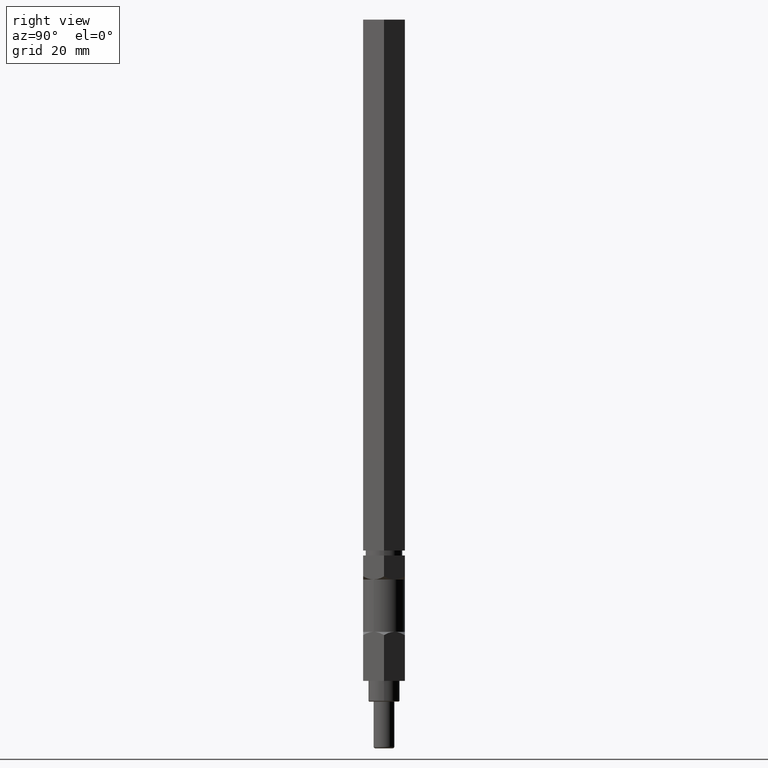
[diagram: clean part render]
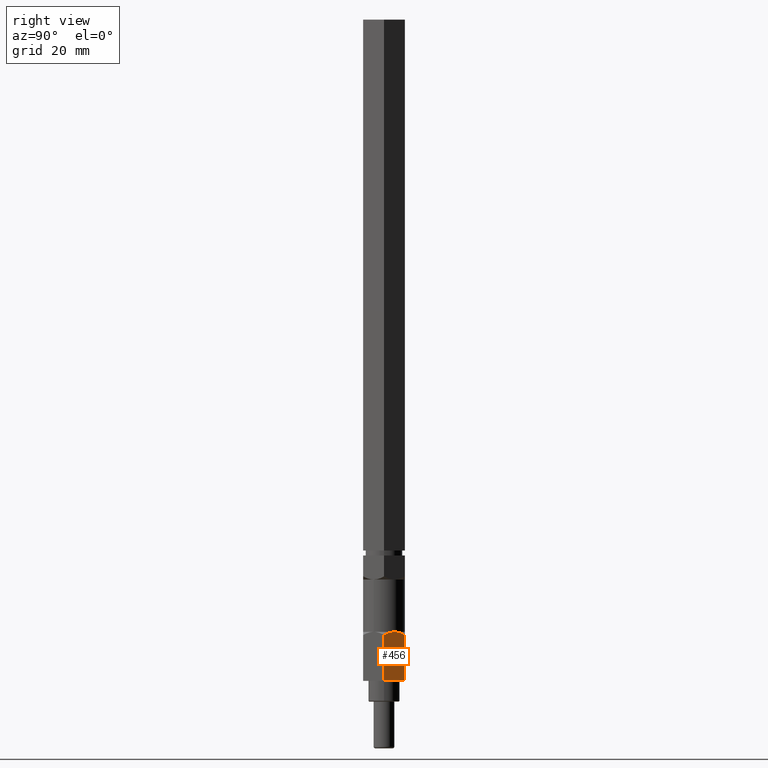
[diagram: same view with one face highlighted and labeled with its STEP entity id]
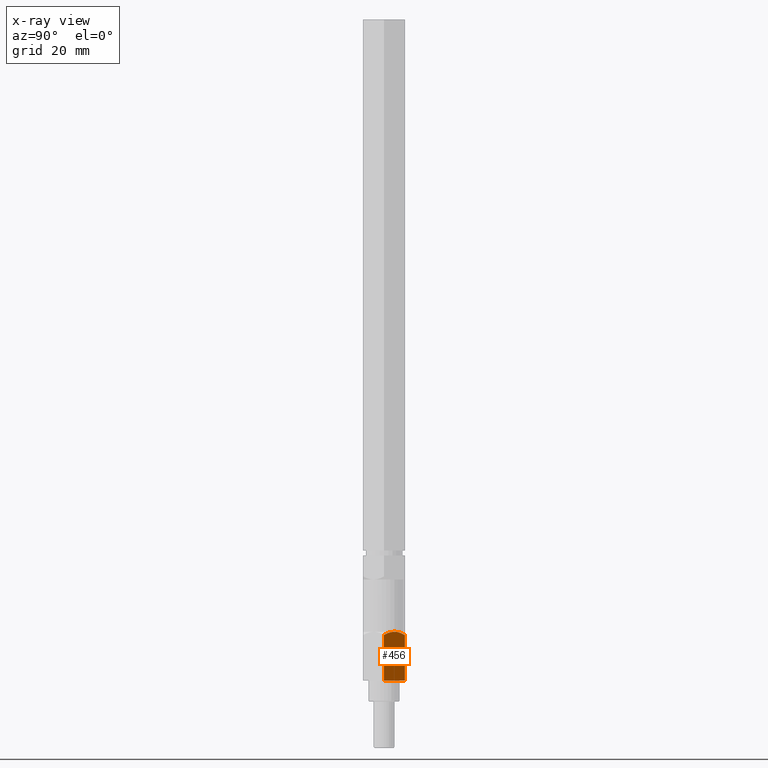
[diagram: x-ray of the same camera — body ghosted, the highlighted face saturated]
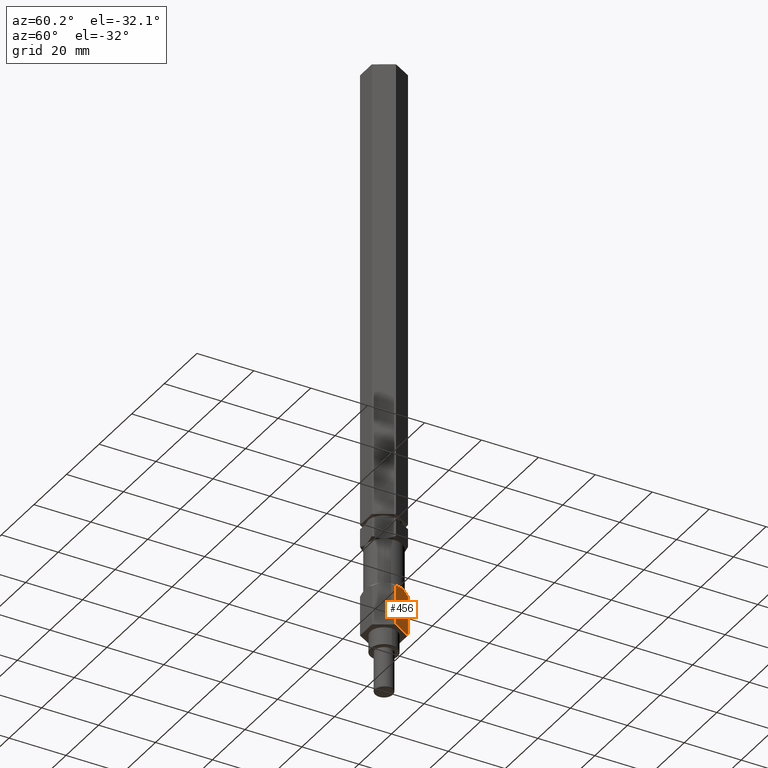
[diagram: same view with one face highlighted and labeled with its STEP entity id]
A machine part, right view. The second image highlights one B-rep face of the part: STEP entity #456.
The next image is the same camera in x-ray: the body ghosted, the highlighted face saturated — about 0% of this face is hidden behind the body in this view.
A second angle (auxiliary view) of the same face is appended — the face is thin or edge-on in the first view.
In plain terms, the highlighted planar face has unit normal (-0.866, -0.5, 0).
Its self-contained STEP definition (entity closure, byte-faithful):
#35 = CARTESIAN_POINT ( 'NONE',  ( -41.50931968023328977, 35.25928631796896440, -55.21392004042454715 ) ) ;
#59 = CARTESIAN_POINT ( 'NONE',  ( -40.31697137170734635, 33.19407846728321232, -78.60903965617787037 ) ) ;
#95 = ORIENTED_EDGE ( 'NONE', *, *, #1338, .T. ) ;
#105 = CARTESIAN_POINT ( 'NONE',  ( -39.67623257555623439, 32.08428631796896724, -78.48857250042458134 ) ) ;
#162 = DIRECTION ( 'NONE',  ( 0.5000000000000002220, -0.8660254037844384856, 0.0000000000000000000 ) ) ;
#234 = CARTESIAN_POINT ( 'NONE',  ( -39.83840285783918489, 32.36517348636082403, -78.48857250042456712 ) ) ;
#311 = CARTESIAN_POINT ( 'NONE',  ( -37.84314547087916480, 28.90928631796897008, -79.47092004042455926 ) ) ;
#456 = ADVANCED_FACE ( 'NONE', ( #795 ), #1591, .F. ) ;
#489 = CARTESIAN_POINT ( 'NONE',  ( -41.50931968023328977, 35.25928631796896440, -79.47092004042455926 ) ) ;
#509 = CARTESIAN_POINT ( 'NONE',  ( -37.98655260835094083, 29.15767476623807397, -79.32751380013054643 ) ) ;
#584 = CARTESIAN_POINT ( 'NONE',  ( -39.67623257555623439, 32.08428631796896724, -78.48857250042458134 ) ) ;
#588 = DIRECTION ( 'NONE',  ( -0.8660254037844385966, -0.5000000000000003331, 0.0000000000000000000 ) ) ;
#589 = VERTEX_POINT ( 'NONE', #584 ) ;
#644 = CARTESIAN_POINT ( 'NONE',  ( -38.13214292680353168, 29.40984459488810998, -79.19445446182582771 ) ) ;
#711 = EDGE_CURVE ( 'NONE', #2125, #1845, #1741, .T. ) ;
#713 = CARTESIAN_POINT ( 'NONE',  ( -37.84314547087916480, 28.90928631796897008, -79.47092004042455926 ) ) ;
#723 = B_SPLINE_CURVE_WITH_KNOTS ( 'NONE', 3,
 ( #2142, #1391, #972, #743, #1557, #644, #509, #713 ),
 .UNSPECIFIED., .F., .F.,
 ( 4, 2, 2, 4 ),
 ( 0.0000000000000000000, 0.001902731302156769827, 0.002854096953235165691, 0.003805462604313561772 ),
 .UNSPECIFIED. ) ;
#740 = AXIS2_PLACEMENT_3D ( 'NONE', #1502, #588, #162 ) ;
#743 = CARTESIAN_POINT ( 'NONE',  ( -38.58101618019030354, 30.18731587591274490, -78.84931234472132644 ) ) ;
#795 = FACE_OUTER_BOUND ( 'NONE', #1961, .T. ) ;
#824 = CARTESIAN_POINT ( 'NONE',  ( -37.84314547087916480, 28.90928631796896298, -93.44092004042454391 ) ) ;
#873 = CARTESIAN_POINT ( 'NONE',  ( -41.22204757283114418, 34.76171491038368089, -79.18364749366824640 ) ) ;
#901 = EDGE_CURVE ( 'NONE', #923, #1614, #2078, .T. ) ;
#923 = VERTEX_POINT ( 'NONE', #489 ) ;
#967 = CARTESIAN_POINT ( 'NONE',  ( -37.84314547087916480, 28.90928631796896298, -93.44092004042454391 ) ) ;
#972 = CARTESIAN_POINT ( 'NONE',  ( -39.04109241039546419, 30.98419128198283090, -78.58762250070174105 ) ) ;
#1034 = ORIENTED_EDGE ( 'NONE', *, *, #901, .F. ) ;
#1078 = EDGE_CURVE ( 'NONE', #1845, #1614, #1920, .T. ) ;
#1086 = CARTESIAN_POINT ( 'NONE',  ( -41.50931968023328977, 35.25928631796896440, -93.44092004042454391 ) ) ;
#1107 = ORIENTED_EDGE ( 'NONE', *, *, #711, .T. ) ;
#1145 = CARTESIAN_POINT ( 'NONE',  ( -40.92827681740472912, 34.25289055817462724, -78.93951527207065055 ) ) ;
#1157 = VECTOR ( 'NONE', #1710, 1000.000000000000000 ) ;
#1297 = EDGE_CURVE ( 'NONE', #589, #2125, #723, .T. ) ;
#1338 = EDGE_CURVE ( 'NONE', #923, #589, #1498, .T. ) ;
#1371 = VECTOR ( 'NONE', #1539, 1000.000000000000000 ) ;
#1391 = CARTESIAN_POINT ( 'NONE',  ( -39.35436045387304205, 31.52678744967368729, -78.48857250042459555 ) ) ;
#1498 = B_SPLINE_CURVE_WITH_KNOTS ( 'NONE', 3,
 ( #2015, #873, #1145, #1612, #59, #1584, #234, #105 ),
 .UNSPECIFIED., .F., .F.,
 ( 4, 2, 2, 4 ),
 ( 0.0000000000000000000, 0.001898955494015795199, 0.002848433241023692799, 0.003797910988031590399 ),
 .UNSPECIFIED. ) ;
#1502 = CARTESIAN_POINT ( 'NONE',  ( -37.84314547087916480, 28.90928631796896298, -55.21392004042454715 ) ) ;
#1539 = DIRECTION ( 'NONE',  ( -0.0000000000000000000, -0.0000000000000000000, -1.000000000000000000 ) ) ;
#1557 = CARTESIAN_POINT ( 'NONE',  ( -38.42905460229282255, 29.92411070219593938, -78.95549486082011015 ) ) ;
#1560 = CARTESIAN_POINT ( 'NONE',  ( -37.84314547087916480, 28.90928631796896298, -55.21392004042454715 ) ) ;
#1584 = CARTESIAN_POINT ( 'NONE',  ( -40.00074672137523635, 32.64636130630231037, -78.51399390747333484 ) ) ;
#1591 = PLANE ( 'NONE',  #740 ) ;
#1612 = CARTESIAN_POINT ( 'NONE',  ( -40.47179682614542884, 33.46224402067493031, -78.67838562998093721 ) ) ;
#1614 = VERTEX_POINT ( 'NONE', #1086 ) ;
#1696 = DIRECTION ( 'NONE',  ( -0.5000000000000003331, 0.8660254037844384856, 0.0000000000000000000 ) ) ;
#1710 = DIRECTION ( 'NONE',  ( -0.0000000000000000000, -0.0000000000000000000, -1.000000000000000000 ) ) ;
#1741 = LINE ( 'NONE', #1560, #1371 ) ;
#1777 = ORIENTED_EDGE ( 'NONE', *, *, #1297, .T. ) ;
#1832 = ORIENTED_EDGE ( 'NONE', *, *, #1078, .T. ) ;
#1845 = VERTEX_POINT ( 'NONE', #824 ) ;
#1920 = LINE ( 'NONE', #967, #2000 ) ;
#1961 = EDGE_LOOP ( 'NONE', ( #95, #1777, #1107, #1832, #1034 ) ) ;
#2000 = VECTOR ( 'NONE', #1696, 1000.000000000000114 ) ;
#2015 = CARTESIAN_POINT ( 'NONE',  ( -41.50931968023328977, 35.25928631796896440, -79.47092004042455926 ) ) ;
#2078 = LINE ( 'NONE', #35, #1157 ) ;
#2125 = VERTEX_POINT ( 'NONE', #311 ) ;
#2142 = CARTESIAN_POINT ( 'NONE',  ( -39.67623257555623439, 32.08428631796896724, -78.48857250042458134 ) ) ;